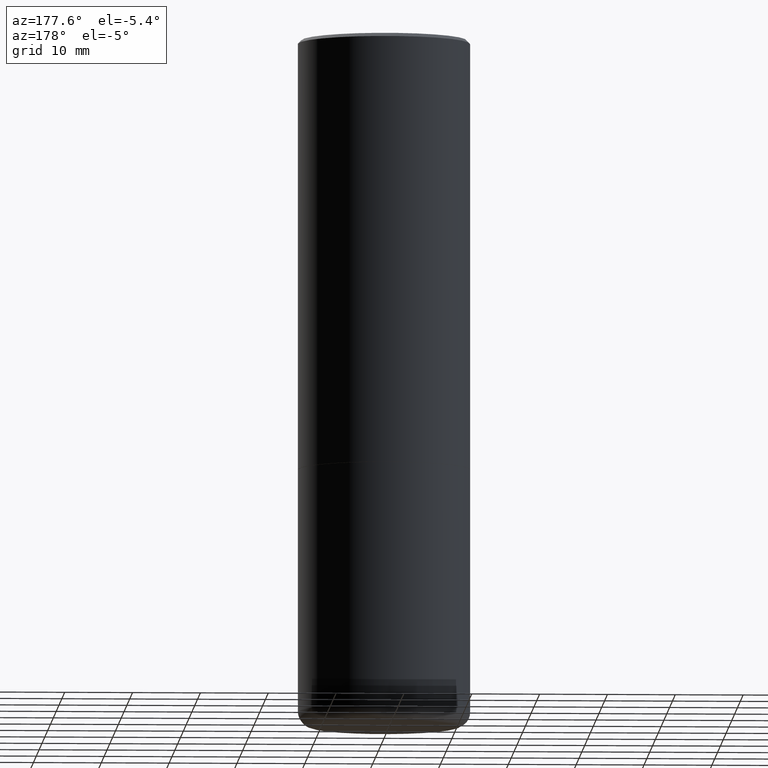
[diagram: clean part render]
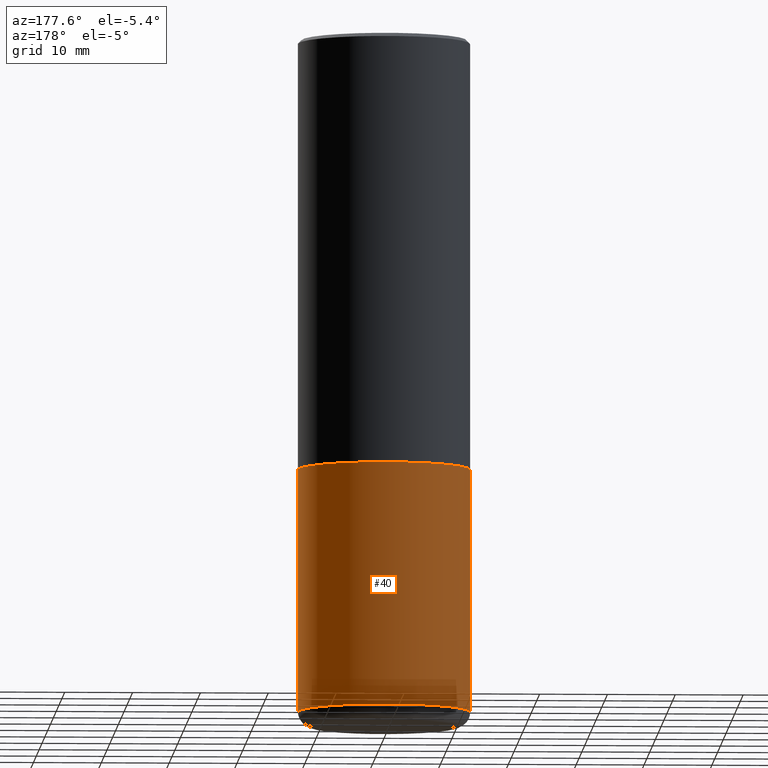
[diagram: same view with one face highlighted and labeled with its STEP entity id]
A machine part, auxiliary view. The second image highlights one B-rep face of the part: STEP entity #40.
In plain terms, the highlighted cylindrical surface (partial cylindrical patch) has radius 12.7 mm, axis along (-0, 0, 1).
Its self-contained STEP definition (entity closure, byte-faithful):
#3 = EDGE_CURVE ( 'NONE', #67, #433, #387, .T. ) ;
#14 = EDGE_CURVE ( 'NONE', #67, #231, #143, .T. ) ;
#25 = ORIENTED_EDGE ( 'NONE', *, *, #3, .T. ) ;
#32 = ORIENTED_EDGE ( 'NONE', *, *, #290, .T. ) ;
#40 = ADVANCED_FACE ( 'NONE', ( #384 ), #353, .T. ) ;
#67 = VERTEX_POINT ( 'NONE', #106 ) ;
#77 = DIRECTION ( 'NONE',  ( -2.445468806185136597E-29, 3.491481338843145583E-15, 1.000000000000000000 ) ) ;
#80 = AXIS2_PLACEMENT_3D ( 'NONE', #141, #147, #181 ) ;
#94 = ORIENTED_EDGE ( 'NONE', *, *, #14, .F. ) ;
#106 = CARTESIAN_POINT ( 'NONE',  ( 0.5000000000000000000, -1.714360401956452473E-14, -3.910123341872087988 ) ) ;
#134 = CARTESIAN_POINT ( 'NONE',  ( -0.5000000000000000000, -7.637699335114127230E-15, -3.910123341872087988 ) ) ;
#141 = CARTESIAN_POINT ( 'NONE',  ( 9.562084660884571289E-29, -1.365212268072139138E-14, -3.910123341872087988 ) ) ;
#143 = LINE ( 'NONE', #383, #296 ) ;
#147 = DIRECTION ( 'NONE',  ( -2.445468806185136597E-29, 3.491481338843145583E-15, 1.000000000000000000 ) ) ;
#176 = CARTESIAN_POINT ( 'NONE',  ( 0.000000000000000000, 0.000000000000000000, 0.000000000000000000 ) ) ;
#181 = DIRECTION ( 'NONE',  ( 1.000000000000000000, -6.982962677686266711E-15, 0.000000000000000000 ) ) ;
#185 = CARTESIAN_POINT ( 'NONE',  ( 6.113672015462842613E-29, -8.728703347107864943E-15, -2.500000000000000000 ) ) ;
#196 = EDGE_CURVE ( 'NONE', #231, #270, #361, .T. ) ;
#231 = VERTEX_POINT ( 'NONE', #426 ) ;
#269 = DIRECTION ( 'NONE',  ( -2.445468806185136877E-29, 3.491481338843145188E-15, 1.000000000000000000 ) ) ;
#270 = VERTEX_POINT ( 'NONE', #372 ) ;
#284 = VECTOR ( 'NONE', #269, 39.37007874015748143 ) ;
#290 = EDGE_CURVE ( 'NONE', #433, #270, #298, .T. ) ;
#296 = VECTOR ( 'NONE', #410, 39.37007874015748143 ) ;
#298 = LINE ( 'NONE', #366, #284 ) ;
#304 = AXIS2_PLACEMENT_3D ( 'NONE', #185, #423, #325 ) ;
#314 = DIRECTION ( 'NONE',  ( 1.000000000000000000, -6.982962677686266711E-15, 4.876176775795935793E-29 ) ) ;
#325 = DIRECTION ( 'NONE',  ( 1.000000000000000000, -6.982962677686269077E-15, 0.000000000000000000 ) ) ;
#332 = AXIS2_PLACEMENT_3D ( 'NONE', #176, #77, #314 ) ;
#353 = CYLINDRICAL_SURFACE ( 'NONE', #332, 0.5000000000000000000 ) ;
#361 = CIRCLE ( 'NONE', #304, 0.5000000000000000000 ) ;
#366 = CARTESIAN_POINT ( 'NONE',  ( -0.5000000000000000000, 3.552713678800500929E-15, -2.459467545127452891E-29 ) ) ;
#372 = CARTESIAN_POINT ( 'NONE',  ( -0.5000000000000000000, -7.637699335114127230E-15, -2.500000000000000000 ) ) ;
#378 = ORIENTED_EDGE ( 'NONE', *, *, #196, .F. ) ;
#383 = CARTESIAN_POINT ( 'NONE',  ( 0.5000000000000000000, -3.491481338843133355E-15, 2.438088387897967896E-29 ) ) ;
#384 = FACE_OUTER_BOUND ( 'NONE', #400, .T. ) ;
#387 = CIRCLE ( 'NONE', #80, 0.5000000000000000000 ) ;
#400 = EDGE_LOOP ( 'NONE', ( #25, #32, #378, #94 ) ) ;
#410 = DIRECTION ( 'NONE',  ( -2.445468806185136877E-29, 3.491481338843145188E-15, 1.000000000000000000 ) ) ;
#423 = DIRECTION ( 'NONE',  ( -2.445468806185136597E-29, 3.491481338843145583E-15, 1.000000000000000000 ) ) ;
#426 = CARTESIAN_POINT ( 'NONE',  ( 0.5000000000000000000, -1.222018468595099830E-14, -2.500000000000000000 ) ) ;
#433 = VERTEX_POINT ( 'NONE', #134 ) ;